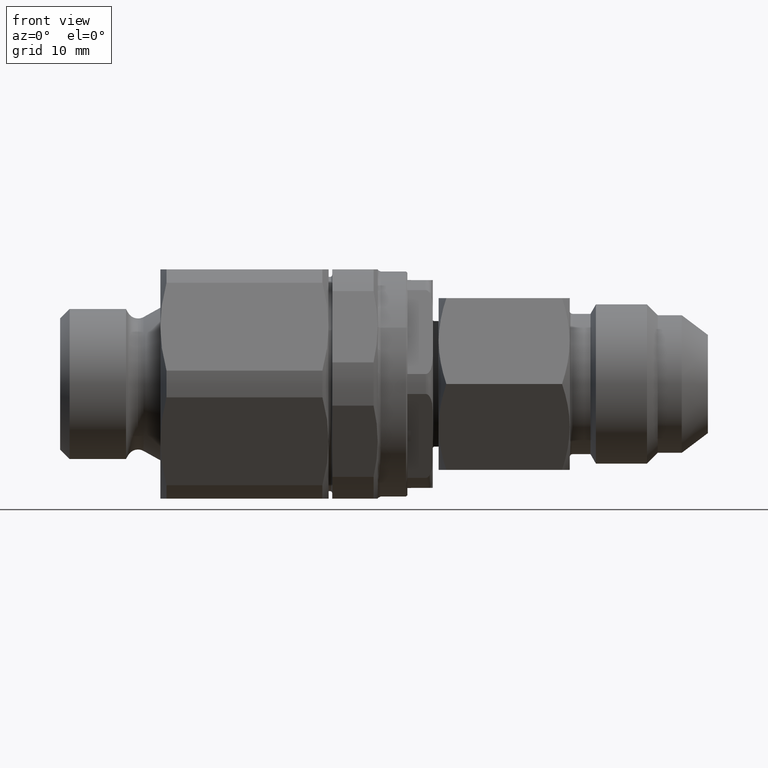
[diagram: clean part render]
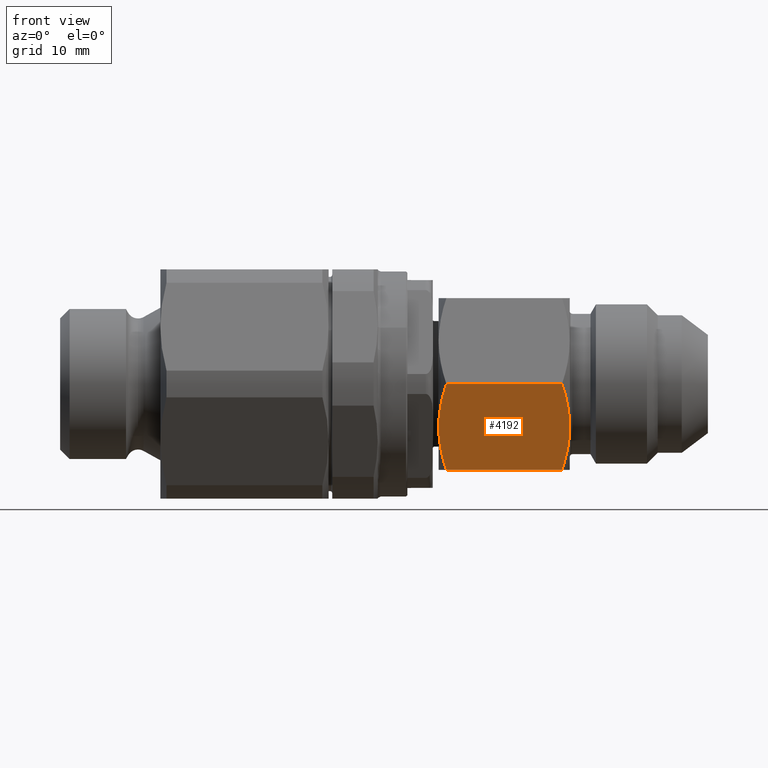
[diagram: same view with one face highlighted and labeled with its STEP entity id]
A machine part, front view. The second image highlights one B-rep face of the part: STEP entity #4192.
In plain terms, the highlighted planar face has unit normal (-0, -0.866, -0.5).
Its self-contained STEP definition (entity closure, byte-faithful):
#85 = PLANE ( 'NONE',  #3871 ) ;
#86 = CARTESIAN_POINT ( 'NONE',  ( 90.46999999999998500, -13.85640646055102100, 9.397120713888846600E-015 ) ) ;
#87 = DIRECTION ( 'NONE',  ( -8.025497024696839900E-018, -0.8660254037844391500, -0.4999999999999991100 ) ) ;
#88 = DIRECTION ( 'NONE',  ( 1.691211390515731500E-017, -0.4999999999999991100, 0.8660254037844391500 ) ) ;
#584 = CARTESIAN_POINT ( 'NONE',  ( 70.09820323027548700, -6.928203230275523000, -12.00000000000000000 ) ) ;
#647 = FACE_OUTER_BOUND ( 'NONE', #5415, .T. ) ;
#1008 = ORIENTED_EDGE ( 'NONE', *, *, #1482, .T. ) ;
#1009 = ORIENTED_EDGE ( 'NONE', *, *, #1488, .T. ) ;
#1010 = ORIENTED_EDGE ( 'NONE', *, *, #1494, .T. ) ;
#1011 = ORIENTED_EDGE ( 'NONE', *, *, #1495, .T. ) ;
#1012 = ORIENTED_EDGE ( 'NONE', *, *, #1496, .T. ) ;
#1032 = VERTEX_POINT ( 'NONE', #4775 ) ;
#1136 = VERTEX_POINT ( 'NONE', #4777 ) ;
#1258 = VERTEX_POINT ( 'NONE', #584 ) ;
#1289 = VERTEX_POINT ( 'NONE', #5824 ) ;
#1482 = EDGE_CURVE ( 'NONE', #1258, #1136, #5719, .T. ) ;
#1488 = EDGE_CURVE ( 'NONE', #1136, #1289, #5725, .T. ) ;
#1494 = EDGE_CURVE ( 'NONE', #1289, #4264, #3292, .T. ) ;
#1495 = EDGE_CURVE ( 'NONE', #4264, #4310, #5731, .T. ) ;
#1496 = EDGE_CURVE ( 'NONE', #4310, #1032, #5732, .T. ) ;
#1497 = EDGE_CURVE ( 'NONE', #1258, #1032, #3295, .T. ) ;
#2024 = ORIENTED_EDGE ( 'NONE', *, *, #1497, .F. ) ;
#3292 = LINE ( 'NONE', #5094, #3294 ) ;
#3294 = VECTOR ( 'NONE', #5095, 1000.000000000000000 ) ;
#3295 = LINE ( 'NONE', #5110, #3296 ) ;
#3296 = VECTOR ( 'NONE', #5111, 1000.000000000000000 ) ;
#3799 = CARTESIAN_POINT ( 'NONE',  ( 70.09820323027548700, -6.928203230275523000, -12.00000000000000000 ) ) ;
#3800 = CARTESIAN_POINT ( 'NONE',  ( 70.42537699138731000, -7.494884807424061700, -11.01847871666546500 ) ) ;
#3801 = CARTESIAN_POINT ( 'NONE',  ( 70.69491953530557300, -8.065705644765227300, -10.02978802437155700 ) ) ;
#3802 = CARTESIAN_POINT ( 'NONE',  ( 71.06785204356384600, -9.219280934457641400, -8.031737012268308700 ) ) ;
#3803 = CARTESIAN_POINT ( 'NONE',  ( 71.17000000000001600, -9.802124591828768300, -7.022222184832241300 ) ) ;
#3804 = CARTESIAN_POINT ( 'NONE',  ( 71.16999999999998700, -10.39230484541327500, -5.999999999999992900 ) ) ;
#3841 = CARTESIAN_POINT ( 'NONE',  ( 71.16999999999998700, -10.39230484541327500, -5.999999999999992900 ) ) ;
#3842 = CARTESIAN_POINT ( 'NONE',  ( 71.17000000000000200, -10.68629157650004300, -5.490800045006622600 ) ) ;
#3843 = CARTESIAN_POINT ( 'NONE',  ( 71.14466674670683200, -10.98159727696818600, -4.979315568031076100 ) ) ;
#3844 = CARTESIAN_POINT ( 'NONE',  ( 71.04662985963003100, -11.56577346444171900, -3.967492730755030700 ) ) ;
#3845 = CARTESIAN_POINT ( 'NONE',  ( 70.97402049070119300, -11.85590772719117300, -3.464965446656439700 ) ) ;
#3846 = CARTESIAN_POINT ( 'NONE',  ( 70.69397379176724900, -12.72115749107474900, -1.966308894373112000 ) ) ;
#3847 = CARTESIAN_POINT ( 'NONE',  ( 70.42455996286143700, -13.29114001832025600, -0.9790701977573714700 ) ) ;
#3848 = CARTESIAN_POINT ( 'NONE',  ( 70.09820323027548700, -13.85640646055102100, 9.777239471107731500E-015 ) ) ;
#3871 = AXIS2_PLACEMENT_3D ( 'NONE', #86, #87, #88 ) ;
#4192 = ADVANCED_FACE ( 'NONE', ( #647 ), #85, .T. ) ;
#4264 = VERTEX_POINT ( 'NONE', #5883 ) ;
#4310 = VERTEX_POINT ( 'NONE', #5929 ) ;
#4775 = CARTESIAN_POINT ( 'NONE',  ( 53.94179676972446900, -6.928203230275523000, -11.99999999999999800 ) ) ;
#4777 = CARTESIAN_POINT ( 'NONE',  ( 71.16999999999998700, -10.39230484541327500, -5.999999999999992900 ) ) ;
#5094 = CARTESIAN_POINT ( 'NONE',  ( 90.46999999999998500, -13.85640646055102100, 9.397120713888846600E-015 ) ) ;
#5095 = DIRECTION ( 'NONE',  ( -1.000000000000000000, -1.505772651194858000E-018, 1.865906878591076200E-017 ) ) ;
#5096 = CARTESIAN_POINT ( 'NONE',  ( 53.94179676972446900, -13.85640646055102100, 1.007870297058828500E-014 ) ) ;
#5097 = CARTESIAN_POINT ( 'NONE',  ( 53.61462300861268200, -13.28972488340251000, -0.9815212833344745300 ) ) ;
#5098 = CARTESIAN_POINT ( 'NONE',  ( 53.34508046469441900, -12.71890404606137500, -1.970211975628335400 ) ) ;
#5099 = CARTESIAN_POINT ( 'NONE',  ( 52.97214795643612500, -11.56532875636901600, -3.968262987731487900 ) ) ;
#5100 = CARTESIAN_POINT ( 'NONE',  ( 52.86999999999999000, -10.98248509899791800, -4.977777815167505600 ) ) ;
#5101 = CARTESIAN_POINT ( 'NONE',  ( 52.87000000000234200, -10.39230484541327300, -5.999999999999992900 ) ) ;
#5102 = CARTESIAN_POINT ( 'NONE',  ( 52.87000000000234200, -10.39230484541327300, -5.999999999999992900 ) ) ;
#5103 = CARTESIAN_POINT ( 'NONE',  ( 52.86999999999998300, -10.09831811432666300, -6.509199954993096800 ) ) ;
#5104 = CARTESIAN_POINT ( 'NONE',  ( 52.89533325329312400, -9.803012413858502000, -7.020684431968665400 ) ) ;
#5105 = CARTESIAN_POINT ( 'NONE',  ( 52.99337014036989000, -9.218836226384937000, -8.032507269244760600 ) ) ;
#5106 = CARTESIAN_POINT ( 'NONE',  ( 53.06597950929870700, -8.928701963635466800, -8.535034553343381300 ) ) ;
#5107 = CARTESIAN_POINT ( 'NONE',  ( 53.34602620823272200, -8.063452199751852200, -10.03369110562678700 ) ) ;
#5108 = CARTESIAN_POINT ( 'NONE',  ( 53.61544003713851200, -7.493469672506315700, -11.02092980224257500 ) ) ;
#5109 = CARTESIAN_POINT ( 'NONE',  ( 53.94179676972446900, -6.928203230275523000, -11.99999999999999800 ) ) ;
#5110 = CARTESIAN_POINT ( 'NONE',  ( 90.46999999999998500, -6.928203230275523000, -12.00000000000000000 ) ) ;
#5111 = DIRECTION ( 'NONE',  ( -1.000000000000000000, -1.505772651194858000E-018, 1.865906878591076200E-017 ) ) ;
#5415 = EDGE_LOOP ( 'NONE', ( #1008, #1009, #1010, #1011, #1012, #2024 ) ) ;
#5719 = B_SPLINE_CURVE_WITH_KNOTS ( 'NONE', 3,
 ( #3799, #3800, #3801, #3802, #3803, #3804 ),
 .UNSPECIFIED., .F., .F.,
 ( 4, 2, 4 ),
 ( 2.380729645520644900E-007, 0.003505341553885853300, 0.007010445034807155100 ),
 .UNSPECIFIED. ) ;
#5725 = B_SPLINE_CURVE_WITH_KNOTS ( 'NONE', 3,
 ( #3841, #3842, #3843, #3844, #3845, #3846, #3847, #3848 ),
 .UNSPECIFIED., .F., .F.,
 ( 4, 2, 2, 4 ),
 ( 0.007010445034807155100, 0.008756443665256697900, 0.01050244229570624000, 0.01399443955660533200 ),
 .UNSPECIFIED. ) ;
#5731 = B_SPLINE_CURVE_WITH_KNOTS ( 'NONE', 3,
 ( #5096, #5097, #5098, #5099, #5100, #5101 ),
 .UNSPECIFIED., .F., .F.,
 ( 4, 2, 4 ),
 ( 2.380729645511935300E-007, 0.003505341553885683300, 0.007010445034806814200 ),
 .UNSPECIFIED. ) ;
#5732 = B_SPLINE_CURVE_WITH_KNOTS ( 'NONE', 3,
 ( #5102, #5103, #5104, #5105, #5106, #5107, #5108, #5109 ),
 .UNSPECIFIED., .F., .F.,
 ( 4, 2, 2, 4 ),
 ( 0.007010445034806814200, 0.008756443665256444600, 0.01050244229570607500, 0.01399443955660533200 ),
 .UNSPECIFIED. ) ;
#5824 = CARTESIAN_POINT ( 'NONE',  ( 70.09820323027548700, -13.85640646055102100, 9.777239471107731500E-015 ) ) ;
#5883 = CARTESIAN_POINT ( 'NONE',  ( 53.94179676972446900, -13.85640646055102100, 1.007870297058828500E-014 ) ) ;
#5929 = CARTESIAN_POINT ( 'NONE',  ( 52.87000000000234200, -10.39230484541327300, -5.999999999999992900 ) ) ;